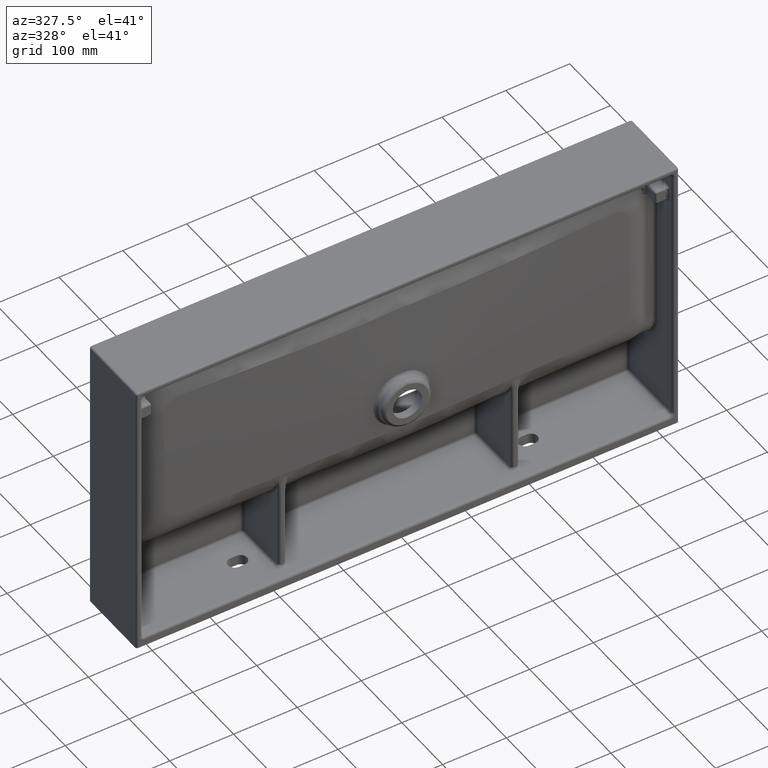
[diagram: clean part render]
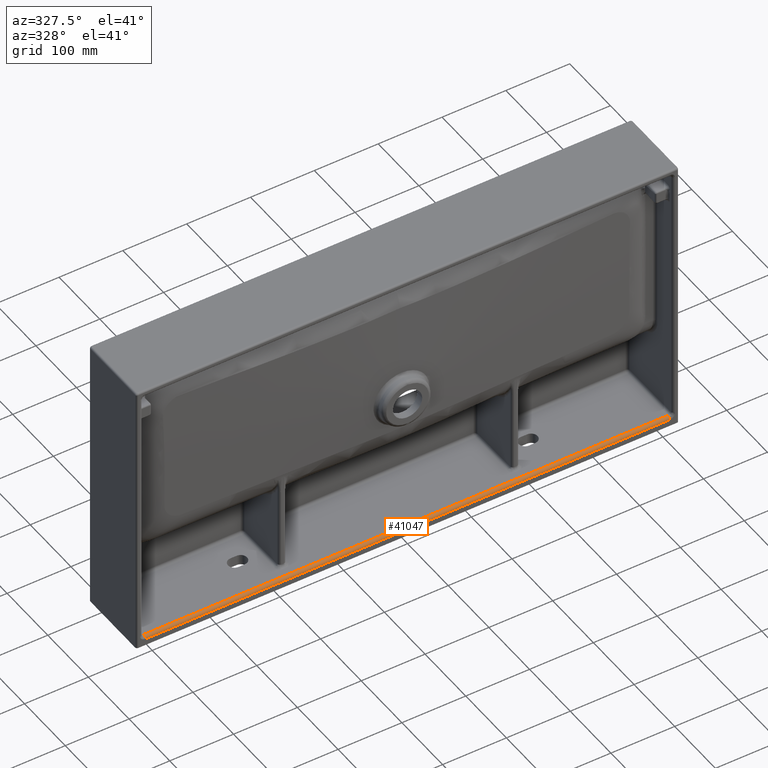
[diagram: same view with one face highlighted and labeled with its STEP entity id]
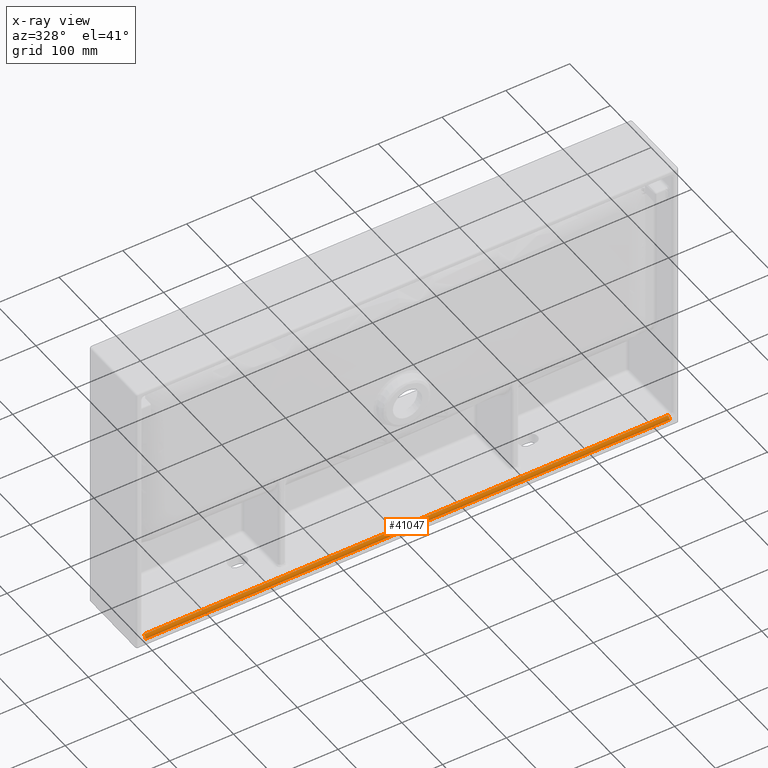
[diagram: x-ray of the same camera — body ghosted, the highlighted face saturated]
A machine part, auxiliary view. The second image highlights one B-rep face of the part: STEP entity #41047.
The next image is the same camera in x-ray: the body ghosted, the highlighted face saturated — about 0% of this face is hidden behind the body in this view.
In plain terms, the highlighted cylindrical surface (edge-blend (fillet) strip) has radius 4.5 mm, axis along (-1, -0, 0).
Its self-contained STEP definition (entity closure, byte-faithful):
#1286 = CARTESIAN_POINT ( 'NONE',  ( 927.9662905162738300, 4.421464171032230400, 15.07717694418314600 ) ) ;
#3538 = EDGE_CURVE ( 'NONE', #15841, #76701, #40219, .T. ) ;
#5630 = DIRECTION ( 'NONE',  ( 1.000000000000000000, 2.554807738774988400E-014, -2.510602572680967400E-014 ) ) ;
#6990 = CARTESIAN_POINT ( 'NONE',  ( 910.4235084276128900, 4.500000000000003600, 10.57786231597940200 ) ) ;
#9373 = AXIS2_PLACEMENT_3D ( 'NONE', #58559, #35609, #96045 ) ;
#12808 = CIRCLE ( 'NONE', #69928, 4.500000000000002700 ) ;
#14329 = ORIENTED_EDGE ( 'NONE', *, *, #67660, .T. ) ;
#14664 = DIRECTION ( 'NONE',  ( -2.467162276944793600E-014, 1.000000000000000000, 0.0000000000000000000 ) ) ;
#15841 = VERTEX_POINT ( 'NONE', #96079 ) ;
#17169 = VERTEX_POINT ( 'NONE', #41523 ) ;
#22213 = CIRCLE ( 'NONE', #29355, 4.499999999999997300 ) ;
#29355 = AXIS2_PLACEMENT_3D ( 'NONE', #6990, #60020, #14664 ) ;
#30647 = VERTEX_POINT ( 'NONE', #74314 ) ;
#31992 = ORIENTED_EDGE ( 'NONE', *, *, #80550, .T. ) ;
#35018 = LINE ( 'NONE', #35724, #57664 ) ;
#35475 = DIRECTION ( 'NONE',  ( 1.000000000000000000, -0.0000000000000000000, -0.0000000000000000000 ) ) ;
#35609 = DIRECTION ( 'NONE',  ( -1.000000000000000000, -2.554807738774988400E-014, 2.510602572680967400E-014 ) ) ;
#35724 = CARTESIAN_POINT ( 'NONE',  ( 1004.999999999999900, 0.0000000000000000000, 10.57786231595642200 ) ) ;
#36743 = ORIENTED_EDGE ( 'NONE', *, *, #3538, .F. ) ;
#40219 = LINE ( 'NONE', #1286, #98089 ) ;
#40676 = DIRECTION ( 'NONE',  ( 1.000000000000000000, 0.0000000000000000000, 0.0000000000000000000 ) ) ;
#41047 = ADVANCED_FACE ( 'NONE', ( #58101 ), #75642, .T. ) ;
#41523 = CARTESIAN_POINT ( 'NONE',  ( 89.57649157238690000, 0.0000000000000000000, 10.57786231597940200 ) ) ;
#53398 = EDGE_LOOP ( 'NONE', ( #31992, #14329, #36743, #79347 ) ) ;
#57664 = VECTOR ( 'NONE', #5630, 1000.000000000000000 ) ;
#58101 = FACE_OUTER_BOUND ( 'NONE', #53398, .T. ) ;
#58559 = CARTESIAN_POINT ( 'NONE',  ( 1004.999999999999900, 4.500000000000003600, 10.57786231597940200 ) ) ;
#60020 = DIRECTION ( 'NONE',  ( -1.000000000000000000, -1.277403869387492200E-014, 1.255301286340481600E-014 ) ) ;
#67660 = EDGE_CURVE ( 'NONE', #30647, #76701, #22213, .T. ) ;
#68485 = EDGE_CURVE ( 'NONE', #15841, #17169, #12808, .T. ) ;
#69928 = AXIS2_PLACEMENT_3D ( 'NONE', #85934, #40676, #93511 ) ;
#74314 = CARTESIAN_POINT ( 'NONE',  ( 910.4235084276131100, 0.0000000000000000000, 10.57786231597940200 ) ) ;
#75642 = CYLINDRICAL_SURFACE ( 'NONE', #9373, 4.500000000000002700 ) ;
#76701 = VERTEX_POINT ( 'NONE', #88478 ) ;
#79347 = ORIENTED_EDGE ( 'NONE', *, *, #68485, .T. ) ;
#80550 = EDGE_CURVE ( 'NONE', #17169, #30647, #35018, .T. ) ;
#85934 = CARTESIAN_POINT ( 'NONE',  ( 89.57649157238695600, 4.500000000000003600, 10.57786231597940200 ) ) ;
#88478 = CARTESIAN_POINT ( 'NONE',  ( 910.4235084276131100, 4.421464171032230400, 15.07717694418314600 ) ) ;
#93511 = DIRECTION ( 'NONE',  ( 0.0000000000000000000, -1.000000000000000000, 0.0000000000000000000 ) ) ;
#96045 = DIRECTION ( 'NONE',  ( -4.934324553889581600E-014, 1.000000000000000000, 0.0000000000000000000 ) ) ;
#96079 = CARTESIAN_POINT ( 'NONE',  ( 89.57649157238701300, 4.421464171032230400, 15.07717694418314600 ) ) ;
#98089 = VECTOR ( 'NONE', #35475, 1000.000000000000000 ) ;